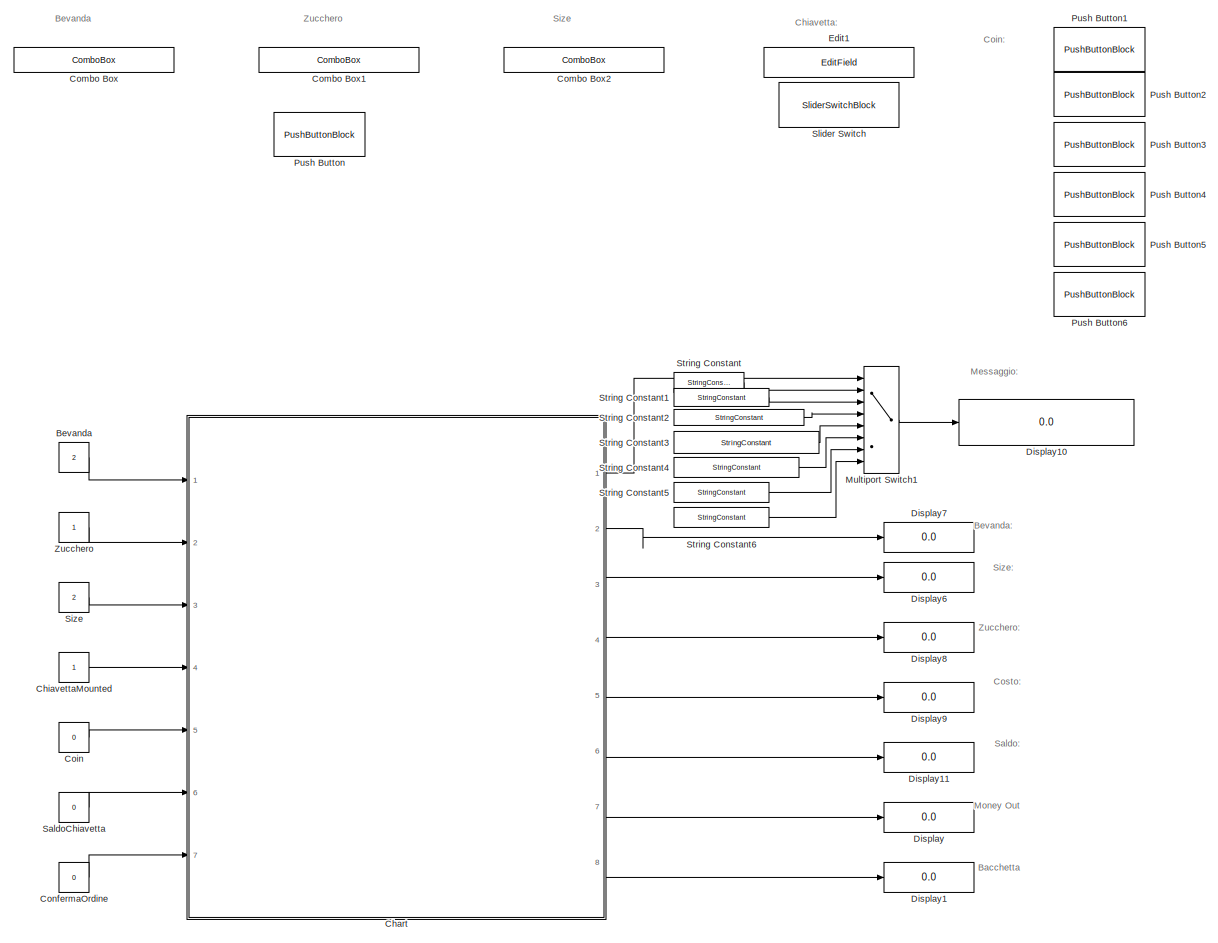
[diagram: root canvas - part 1/1, most of the canvas]
MODEL slx_4ae251f4f5e5
KIND model
CONFIG AbsTol = auto
CONFIG EnableMultiTasking = off
CONFIG FixedStep = 1
CONFIG MaxStep = auto
CONFIG MinStep = auto
CONFIG RelTol = 1e-3
CONFIG SampleTimeConstraint = Unconstrained
CONFIG Solver = FixedStepAuto
CONFIG SolverName = FixedStepAuto
CONFIG StartTime = 0.0
CONFIG StopTime = inf
BLOCK [Constant] Bevanda
  Value = 2
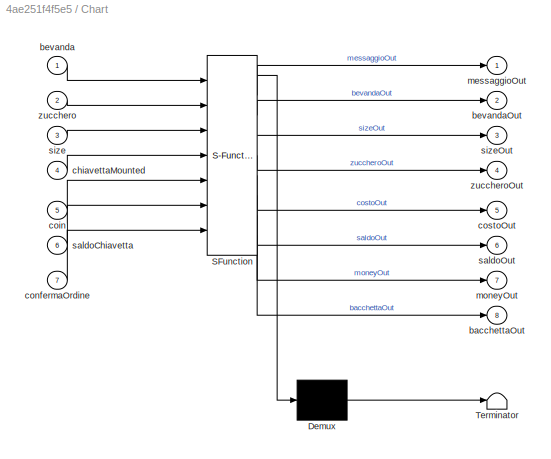
BLOCK [SubSystem] Chart
  BlockKeywords = __PRM__SERIALIZED__DATA__:Stateflow Chart,Stateflow Diagram
  ErrorFcn = Stateflow.Translate.translate
  PermitHierarchicalResolution = ExplicitOnly
  Ports = [7, 8]
  RequestExecContextInheritance = off
  SFBlockType = Chart
  TreatAsAtomicUnit = on
BLOCK [Demux] Chart/ Demux 
  Outputs = 1
  Ports = [1, 1]
BLOCK [S-Function] Chart/ SFunction 
  EnableBusSupport = on
  FunctionName = sf_sfun
  PortCounts = [7 9]
  Ports = [7, 9]
  SFcnIsStateOwnerBlock = off
  SFunctionDeploymentMode = off
  Tag = Stateflow S-Function 3
BLOCK [Terminator] Chart/ Terminator 
BLOCK [Outport] Chart/bacchettaOut
  IconDisplay = Port number
  Port = 8
  VectorParamsAs1DForOutWhenUnconnected = off
BLOCK [Inport] Chart/bevanda
  IconDisplay = Port number
BLOCK [Outport] Chart/bevandaOut
  IconDisplay = Port number
  Port = 2
  VectorParamsAs1DForOutWhenUnconnected = off
BLOCK [Inport] Chart/chiavettaMounted
  IconDisplay = Port number
  Port = 4
BLOCK [Inport] Chart/coin
  IconDisplay = Port number
  Port = 5
BLOCK [Inport] Chart/confermaOrdine
  IconDisplay = Port number
  Port = 7
BLOCK [Outport] Chart/costoOut
  IconDisplay = Port number
  Port = 5
  VectorParamsAs1DForOutWhenUnconnected = off
BLOCK [Outport] Chart/messaggioOut
  IconDisplay = Port number
  VectorParamsAs1DForOutWhenUnconnected = off
BLOCK [Outport] Chart/moneyOut
  IconDisplay = Port number
  Port = 7
  VectorParamsAs1DForOutWhenUnconnected = off
BLOCK [Inport] Chart/saldoChiavetta
  IconDisplay = Port number
  Port = 6
BLOCK [Outport] Chart/saldoOut
  IconDisplay = Port number
  Port = 6
  VectorParamsAs1DForOutWhenUnconnected = off
BLOCK [Inport] Chart/size
  IconDisplay = Port number
  Port = 3
BLOCK [Outport] Chart/sizeOut
  IconDisplay = Port number
  Port = 3
  VectorParamsAs1DForOutWhenUnconnected = off
BLOCK [Inport] Chart/zucchero
  IconDisplay = Port number
  Port = 2
BLOCK [Outport] Chart/zuccheroOut
  IconDisplay = Port number
  Port = 4
  VectorParamsAs1DForOutWhenUnconnected = off
BLOCK [Constant] ChiavettaMounted
BLOCK [Constant] Coin
  Value = 0
BLOCK [ComboBox] Combo Box
  LabelPosition = Hide
  SelectedLabel = The
BLOCK [ComboBox] Combo Box1
  LabelPosition = Hide
  SelectedLabel = Low
BLOCK [ComboBox] Combo Box2
  LabelPosition = Hide
  SelectedLabel = Medium
BLOCK [Constant] ConfermaOrdine
  Value = 0
BLOCK [Display] Display
  Decimation = 1
  Ports = [1]
BLOCK [Display] Display1
  Decimation = 1
  Ports = [1]
BLOCK [Display] Display10
  Decimation = 1
  Ports = [1]
BLOCK [Display] Display11
  Decimation = 1
  Ports = [1]
BLOCK [Display] Display6
  Decimation = 1
  Ports = [1]
BLOCK [Display] Display7
  Decimation = 1
  Ports = [1]
BLOCK [Display] Display8
  Decimation = 1
  Ports = [1]
BLOCK [Display] Display9
  Decimation = 1
  Ports = [1]
BLOCK [EditField] Edit1
  Alignment = Center
  LabelPosition = Hide
  ShowInitialText = on
BLOCK [MultiPortSwitch] Multiport Switch1
  InputSameDT = off
  Inputs = 7
  Ports = [8, 1]
  SaturateOnIntegerOverflow = off
BLOCK [PushButtonBlock] Push Button
  ButtonText = Conferma
BLOCK [PushButtonBlock] Push Button1
  ButtonText = 0.05€
  OnValue = 0.05
BLOCK [PushButtonBlock] Push Button2
  ButtonText = 0.1€
  OnValue = 0.1
BLOCK [PushButtonBlock] Push Button3
  ButtonText = 0.2€
  OnValue = 0.2
BLOCK [PushButtonBlock] Push Button4
  ButtonText = 0.5€
  OnValue = 0.5
BLOCK [PushButtonBlock] Push Button5
  ButtonText = 1€
BLOCK [PushButtonBlock] Push Button6
  ButtonText = 2€
  OnValue = 2
BLOCK [Constant] SaldoChiavetta
  Value = 0
BLOCK [Constant] Size
  Value = 2
BLOCK [SliderSwitchBlock] Slider Switch
BLOCK [StringConstant] String Constant
  String = "Benvenuto"
BLOCK [StringConstant] String Constant1
  String = "Inserisci Denaro"
BLOCK [StringConstant] String Constant2
  String = "Chiavetta Riconosciuta"
BLOCK [StringConstant] String Constant3
  String = "Credito Insufficiente, perfavore ricarica"
BLOCK [StringConstant] String Constant4
  String = "Moneta inserita non valida"
BLOCK [StringConstant] String Constant5
  String = "Credito sufficiente, erogo prodotto"
BLOCK [StringConstant] String Constant6
  String = "Ritirare il prodotto"
BLOCK [Constant] Zucchero 
ANNOTATION (root): Bacchetta
ANNOTATION (root): Bevanda
ANNOTATION (root): Bevanda:
ANNOTATION (root): Chiavetta:
ANNOTATION (root): Coin:
ANNOTATION (root): Costo:
ANNOTATION (root): Messaggio:
ANNOTATION (root): Money Out
ANNOTATION (root): Saldo:
ANNOTATION (root): Size
ANNOTATION (root): Size:
ANNOTATION (root): Zucchero
ANNOTATION (root): Zucchero:
LINE Bevanda:1 -> Chart:1
LINE Chart:1 -> Multiport Switch1:1
LINE Chart:2 -> Display7:1
LINE Chart:3 -> Display6:1
LINE Chart:4 -> Display8:1
LINE Chart:5 -> Display9:1
LINE Chart:6 -> Display11:1
LINE Chart:7 -> Display:1
LINE Chart:8 -> Display1:1
LINE ChiavettaMounted:1 -> Chart:4
LINE Coin:1 -> Chart:5
LINE ConfermaOrdine:1 -> Chart:7
LINE Multiport Switch1:1 -> Display10:1
LINE SaldoChiavetta:1 -> Chart:6
LINE Size:1 -> Chart:3
LINE String Constant1:1 -> Multiport Switch1:3
LINE String Constant2:1 -> Multiport Switch1:4
LINE String Constant3:1 -> Multiport Switch1:5
LINE String Constant4:1 -> Multiport Switch1:6
LINE String Constant5:1 -> Multiport Switch1:7
LINE String Constant6:1 -> Multiport Switch1:8
LINE String Constant:1 -> Multiport Switch1:2
LINE Zucchero :1 -> Chart:2
CHART Chart states=10 transitions=22
  STATE_LABEL 'Idle\nentry:\nmessaggioOut=1;\nbevandaOut=0;\nsizeOut=0;\nzuccheroOut=0;\ncostoOut=0;\nbacchettaOut=0;\nsaldoOut=0;\nmoneyOut=0;\nduring:\nmessaggioOut=1;\ncostoOut=0;\nsaldoOut=0;\npause(1);'
  STATE_LABEL 'OrderConfirmed\nmessaggioOut=2;\ncostoOut=COSTO_BEVANDA;\npause(1);'
  STATE_LABEL 'Gadged\nmessaggioOut=3;\nsaldoOut=saldoChiavetta;\npause(1);'
  STATE_LABEL 'CreditoInsufficiente\nmessaggioOut=4;\npause(1);'
  STATE_LABEL 'Detection\nactualCoin=coin;\nif actualCoin==0.05 || actualCoin==0.1 || actualCoin==0.2 || actualCoin ==0.5 || actualCoin==1 || actualCoin==2\n    isConfirmed=true;\n    if rand(1)>1\n        isConfirmed = false\n    end\nelse\n    isConfirmed=false;\nend\n'
  STATE_LABEL 'CoinAcceptedCash\nentry:\nsaldoTmp=saldoOut+actualCoin;\nactualCoin=0;\nduring:\nsaldoOut=saldoTmp;'
  STATE_LABEL 'CoinAcceptedChiavetta\nentry:\nsaldoTmp=saldoOut+actualCoin;\nactualCoin=0;\nduring:\nsaldoOut=saldoTmp;'
  STATE_LABEL 'CoinRefused\nmessaggioOut=5;\nmoneyOut=actualCoin;\nactualCoin=0;\npause(1)\n'
  STATE_LABEL 'ErogaProdotto\nmessaggioOut=7;\nbevandaOut=bevanda;\nsizeOut=size;\nzuccheroOut=zucchero;\nif zucchero==1\n    bacchettaOut=0;\nelse\n    bacchettaOut=1;\nend\npause(1);'
  STATE_LABEL 'CreditoSufficiente\nmessaggioOut=6;\nif chiavettaMounted==1\n    saldoOut = saldoOut-COSTO_BEVANDA;\nend\nif chiavettaMounted==0\n    moneyOut=saldoOut-COSTO_BEVANDA;\n    saldoOut=0;\nend\n'
